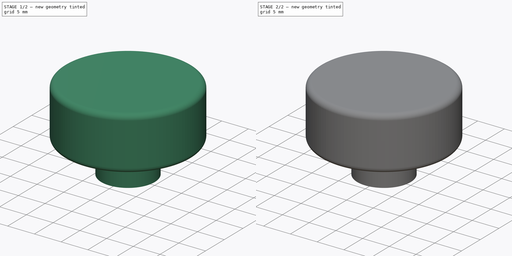
[diagram: build sequence overview — one tinted view per stage of 2, left to right]
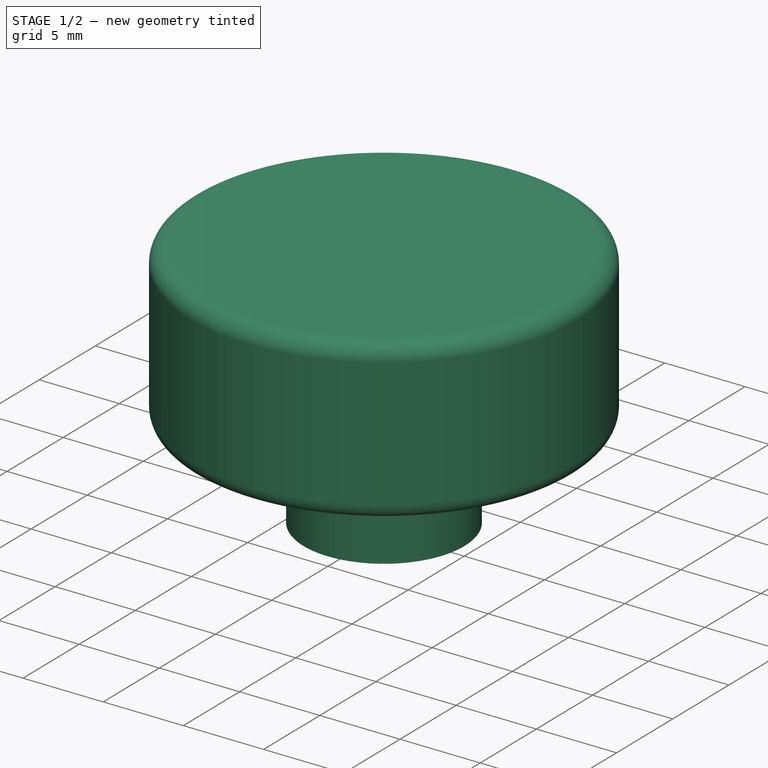
[diagram: stage 1 of 2 — iso view after this stage's code; geometry added in this stage tinted green]
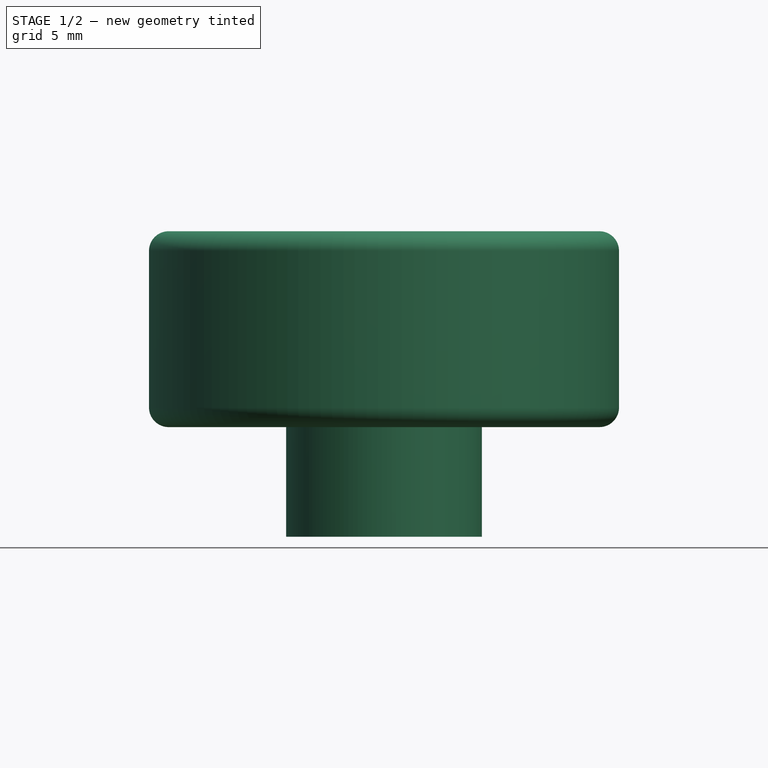
[diagram: stage 1 of 2 — front view after this stage's code; geometry added in this stage tinted green]
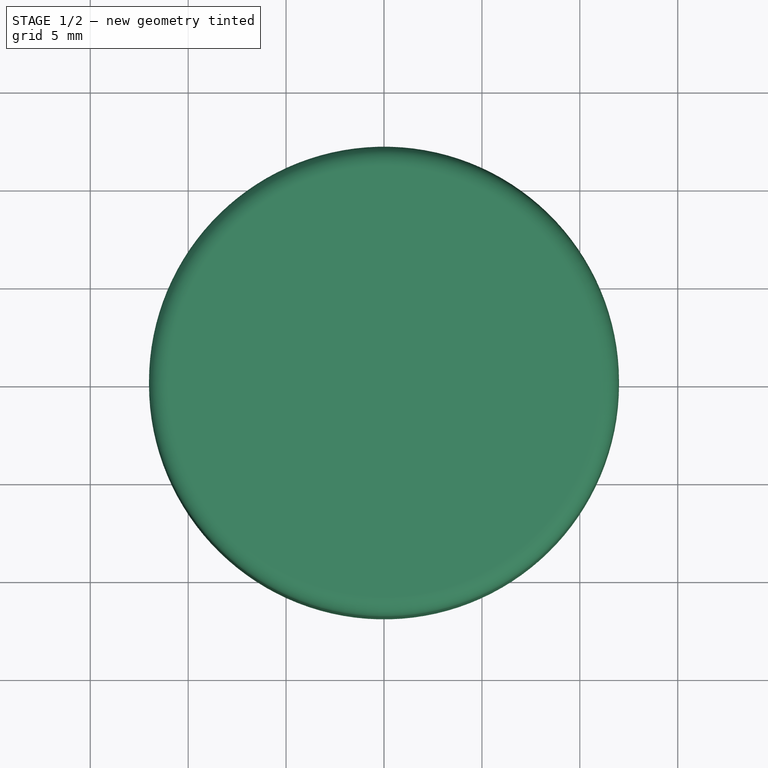
[diagram: stage 1 of 2 — top view after this stage's code; geometry added in this stage tinted green]
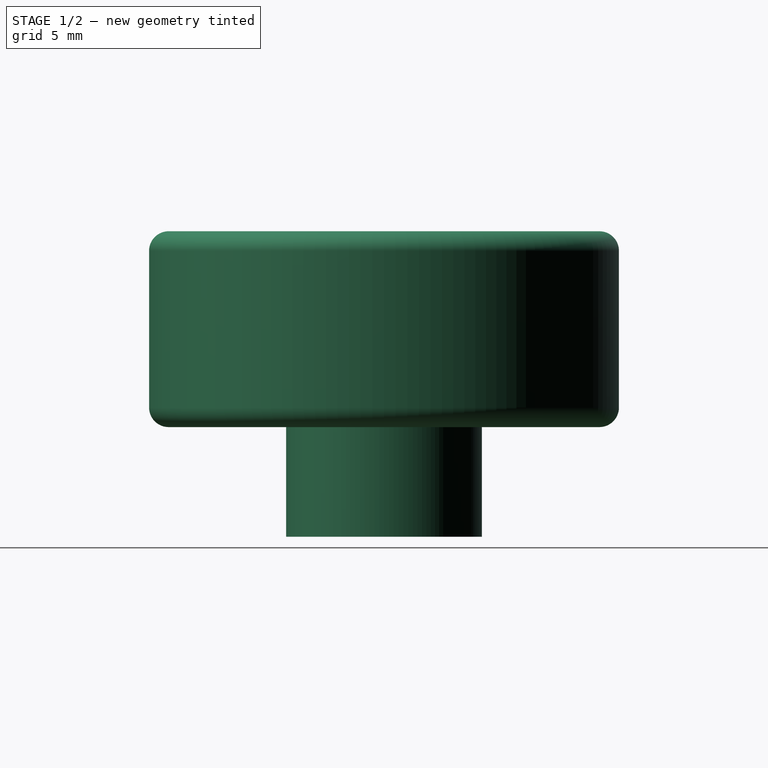
[diagram: stage 1 of 2 — right view after this stage's code; geometry added in this stage tinted green]
FCSTD DOCUMENT  (FreeCAD 0.19R24291 (Git))
Label: knob
License: All rights reserved
LicenseURL: http://en.wikipedia.org/wiki/All_rights_reserved
objects: Sketcher::SketchObject×4, PartDesign::CoordinateSystem×2, PartDesign::Pocket×2, PartDesign::Revolution×1, PartDesign::Body×1
note: 13 computed .brp shape members not serialized (recipe doc carries the construction recipe); baked Part::Feature solids carry a one-line shape summary decoded from their .brp
EXTERNAL_REF file=data.FCStd obj=Spreadsheet

FEATURE [PartDesign::CoordinateSystem] LCS_0
  AttacherType = Attacher::AttachEngine3D
  MapMode = 2
  Support = -> [X_Axis]
FEATURE [Sketcher::SketchObject] Sketch_knob
  FullyConstrained = true
  MapMode = 5
  Placement = pos=(0,0,0) rot=(1,0,0;1.5708rad)
  Support = -> [XZ_Plane]
  expr: Constraints[11] = data#<<data>>.KnobShaftOutsideDiameter / 2
  expr: Constraints[12] = data#<<data>>.KnobShaftLength
  expr: Constraints[24] = data#<<data>>.KnobHeight
  expr: Constraints[15] = data#<<data>>.KnobCornerRadius
  expr: Constraints[18] = data#<<data>>.KnobDiameter / 2
  sketch-geometry (8):
    g0: LineSegment StartX=0 StartY=0 StartZ=0 EndX=0 EndY=15.6 EndZ=0
    g1: LineSegment StartX=0 StartY=15.6 StartZ=0 EndX=11 EndY=15.6 EndZ=0
    g2: LineSegment StartX=12 StartY=14.6 StartZ=0 EndX=12 EndY=6.6 EndZ=0
    g3: LineSegment StartX=11 StartY=5.6 StartZ=0 EndX=5 EndY=5.6 EndZ=0
    g4: LineSegment StartX=5 StartY=5.6 StartZ=0 EndX=5 EndY=0 EndZ=0
    g5: LineSegment StartX=5 StartY=0 StartZ=0 EndX=0 EndY=0 EndZ=0
    g6: ArcOfCircle CenterX=11 CenterY=14.6 CenterZ=0 NormalX=0 NormalY=0 NormalZ=1 AngleXU=0 Radius=1 StartAngle=0 EndAngle=1.5708
    g7: ArcOfCircle CenterX=11 CenterY=6.6 CenterZ=0 NormalX=0 NormalY=0 NormalZ=1 AngleXU=0 Radius=1 StartAngle=4.71239 EndAngle=6.28319
  constraints (25):
    c: Vertical(g0)
    c: Coincident(g0,g1)
    c: Horizontal(g1)
    c: Vertical(g2)
    c: Horizontal(g3)
    c: Coincident(g3,g4)
    c: Vertical(g4)
    c: Coincident(g4,g5)
    c: Coincident(g5,g0)
    c: Horizontal(g5)
    c: Coincident(g0,g-1)
    c: DistanceX(g5,g5) = 5
    c: DistanceY(g4,g4) = 5.6
    c: Vertical(g6,g6)
    c: Horizontal(g6,g6)
    c: Radius(g6) = 1
    c: Coincident(g6,g2)
    c: Coincident(g1,g6)
    c: DistanceX(g0,g2) = 12
    c: Equal(g7,g6)
    c: Horizontal(g7,g7)
    c: Vertical(g7,g7)
    c: Coincident(g2,g7)
    c: Coincident(g7,g3)
    c: DistanceY(g3,g1) = 10
FEATURE [PartDesign::Revolution] Revolution
  Angle = 360
  Axis = (0,-2e-16,1)
  Base = (0,0,0)
  Placement = pos=(0,0,0) rot=(1,0,0;1.5708rad)
  Profile = -> Sketch_knob
  ReferenceAxis = -> Sketch_knob [V_Axis]
FEATURE [Sketcher::SketchObject] Sketch
  FullyConstrained = true
  MapMode = 5
  Support = -> [XY_Plane]
  expr: Constraints[3] = data#<<data>>.KnobShaftCut
  expr: Constraints[1] = data#<<data>>.KnobShaftDiameter
  sketch-geometry (2):
    g0: ArcOfCircle CenterX=0 CenterY=0 CenterZ=0 NormalX=0 NormalY=0 NormalZ=1 AngleXU=0 Radius=3.2 StartAngle=2.65372 EndAngle=6.77106
    g1: LineSegment StartX=-2.82666 StartY=1.5 StartZ=0 EndX=2.82666 EndY=1.5 EndZ=0
  constraints (6):
    c: Coincident(g0,g-1)
    c: Diameter(g0) = 6.4
    c: Horizontal(g1)
    c: DistanceY(g0,g1) = 1.5
    c: Coincident(g0,g1)
    c: Coincident(g0,g1)
FEATURE [PartDesign::Pocket] Pocket
  BaseFeature = -> Revolution
  Length = 12
  Length2 = 100
  Placement = pos=(0,0,0) rot=(1,0,0;1.5708rad)
  Profile = -> Sketch
  Reversed = true
  Type = 0
  expr: Length = data#<<data>>.KnobShaftDepth
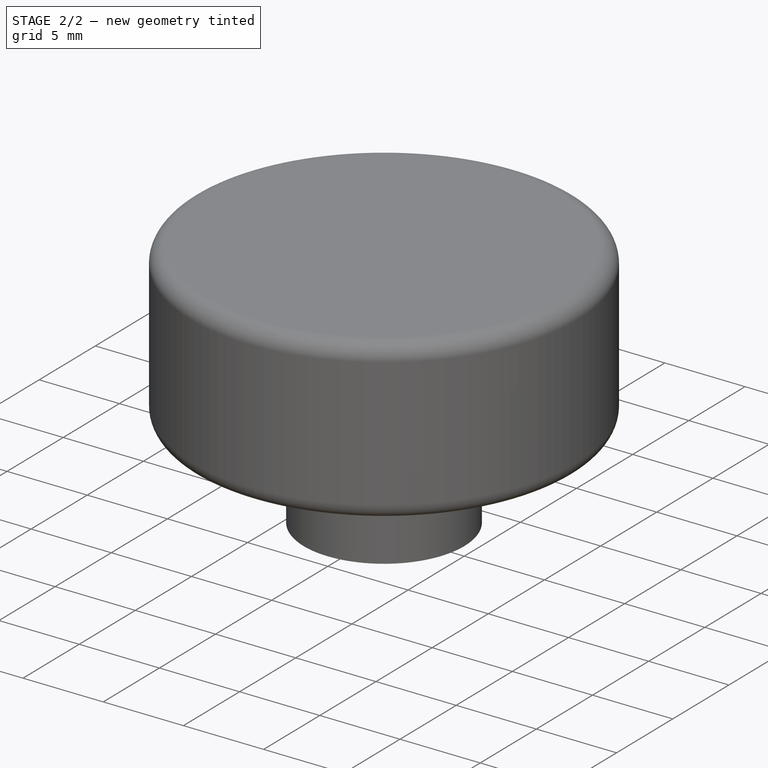
[diagram: stage 2 of 2 — iso view after this stage's code; geometry added in this stage tinted green]
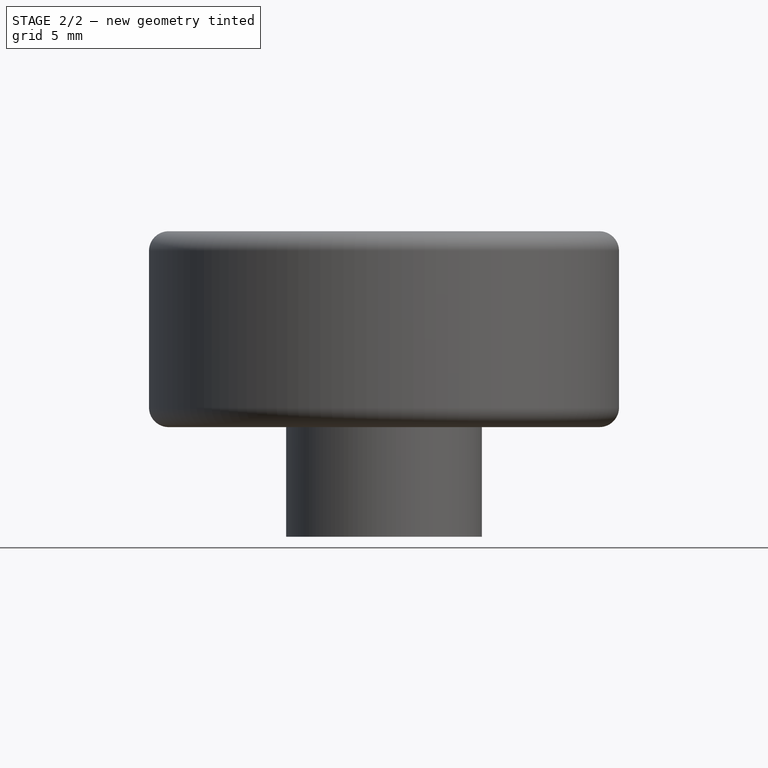
[diagram: stage 2 of 2 — front view after this stage's code; geometry added in this stage tinted green]
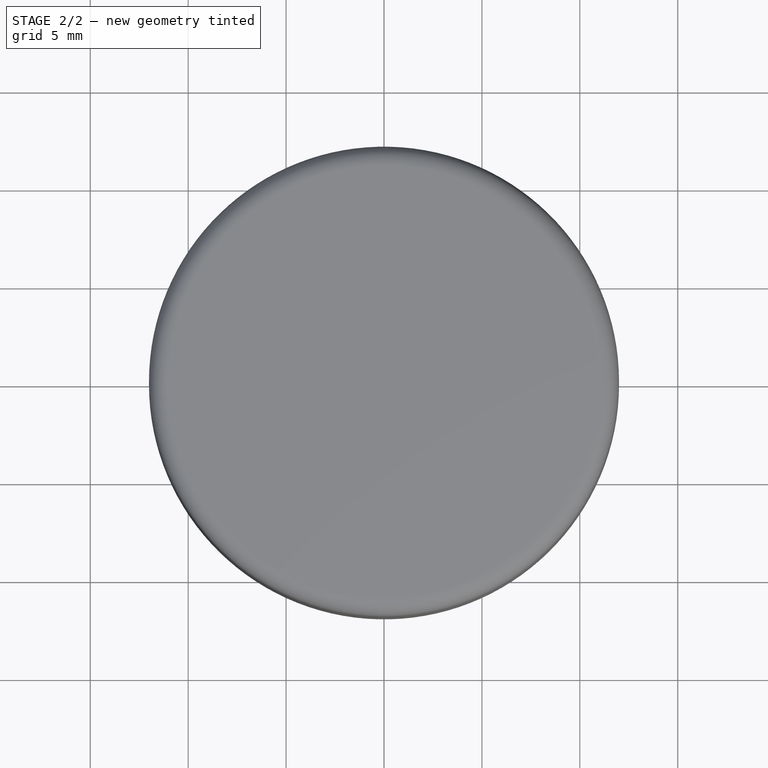
[diagram: stage 2 of 2 — top view after this stage's code; geometry added in this stage tinted green]
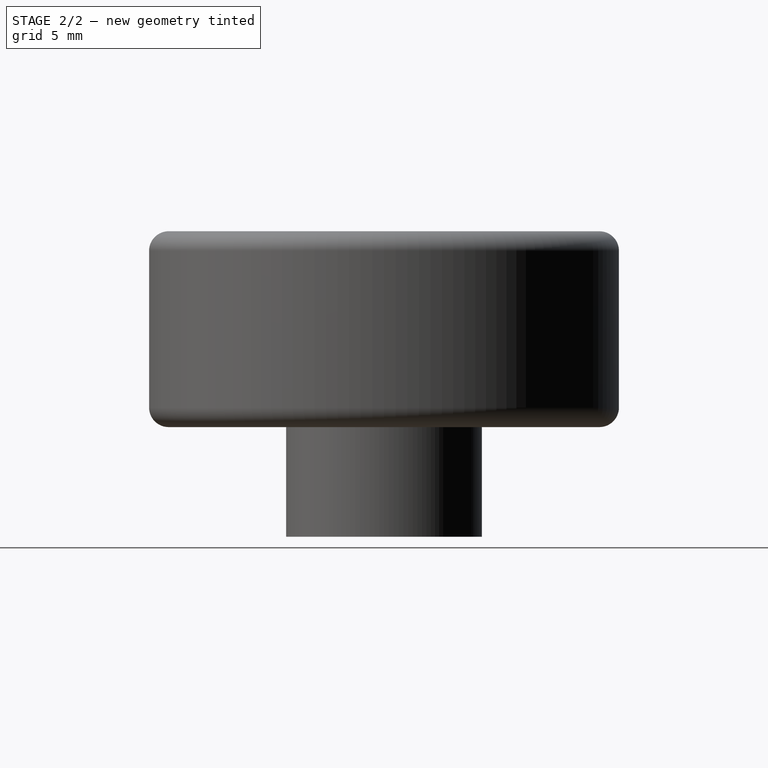
[diagram: stage 2 of 2 — right view after this stage's code; geometry added in this stage tinted green]
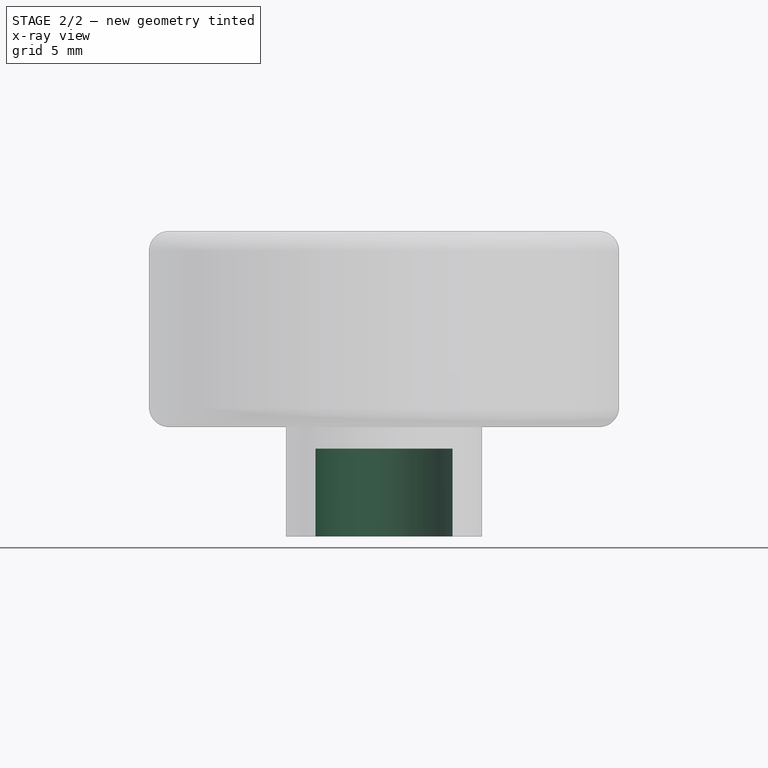
[diagram: stage 2 of 2 — x-ray composite at the front view; earlier geometry ghosted, this stage's added geometry solid]
FEATURE [Sketcher::SketchObject] Sketch001
  FullyConstrained = true
  MapMode = 5
  Support = -> [XY_Plane]
  expr: Constraints[1] = data#<<data>>.KnobShaftDiameter2
  sketch-geometry (1):
    g0: Circle CenterX=0 CenterY=0 CenterZ=0 NormalX=0 NormalY=0 NormalZ=1 AngleXU=0 Radius=3.5
  constraints (2):
    c: Coincident(g0,g-1)
    c: Diameter(g0) = 7
FEATURE [PartDesign::Pocket] Pocket001
  BaseFeature = -> Pocket
  Length = 4.5
  Length2 = 100
  Placement = pos=(0,0,0) rot=(1,0,0;1.5708rad)
  Profile = -> Sketch001
  Reversed = true
  Type = 0
  expr: Length = data#<<data>>.KnobShaftDepth2
FEATURE [PartDesign::CoordinateSystem] LCS_encoder
  AttacherType = Attacher::AttachEngine3D
  MapMode = 11
  Placement = pos=(0,0,4.5) rot=(0.707107,-0.707107,0;3.14159rad)
  Support = -> [Pocket001]
FEATURE [Sketcher::SketchObject] Sketch002
  FullyConstrained = true
  MapMode = 5
  Placement = pos=(0,0,0) rot=(1,0,0;1.5708rad)
  Support = -> [XZ_Plane]
  expr: Constraints[10] = data#<<data>>.KnobDiameter / 2
  expr: Constraints[11] = data#<<data>>.KnobShaftLength
  sketch-geometry (4):
    g0: LineSegment StartX=12 StartY=7.01421 StartZ=0 EndX=10.5858 EndY=5.6 EndZ=0
    g1: LineSegment StartX=10.5858 StartY=5.6 StartZ=0 EndX=12 EndY=4.18579 EndZ=0
    g2: LineSegment StartX=13.4142 StartY=5.6 StartZ=0 EndX=12 EndY=4.18579 EndZ=0
    g3: LineSegment StartX=12 StartY=7.01421 StartZ=0 EndX=13.4142 EndY=5.6 EndZ=0
  constraints (12):
    c: Coincident(g0,g1)
    c: Vertical(g0,g1)
    c: Coincident(g2,g1)
    c: Equal(g0,g1)
    c: Equal(g1,g2)
    c: Coincident(g3,g0)
    c: Coincident(g3,g2)
    c: Horizontal(g0,g2)
    c: Distance(g3) = 2
    c: Perpendicular(g3,g2)
    c: DistanceX(g-1,g1) = 12
    c: DistanceY(g-1,g0) = 5.6
FEATURE [PartDesign::Body] Body_knob
  Group = -> [LCS_0,Sketch_knob,Revolution,Sketch,Pocket,Sketch001,Pocket001,LCS_encoder,Sketch002]
  Origin = -> Origin
  Tip = -> Pocket001
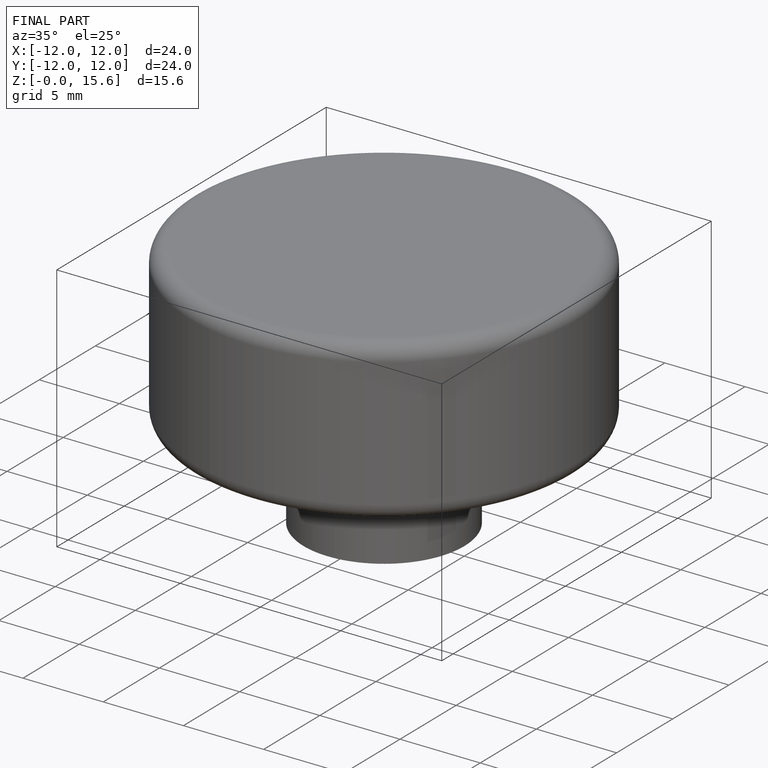
[diagram: finished part — iso view with bounding-box wireframe]
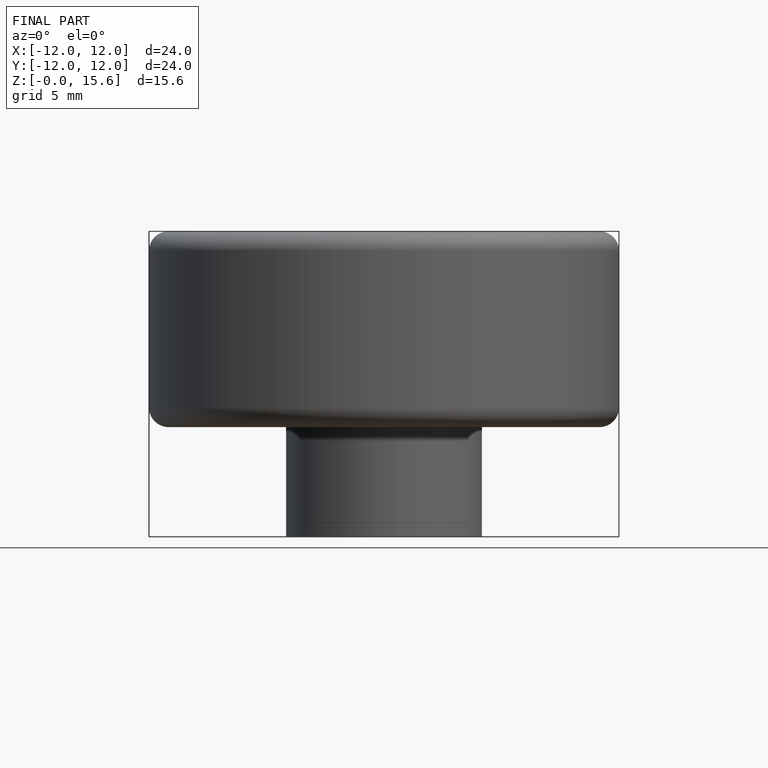
[diagram: finished part — front view with bounding-box wireframe]
